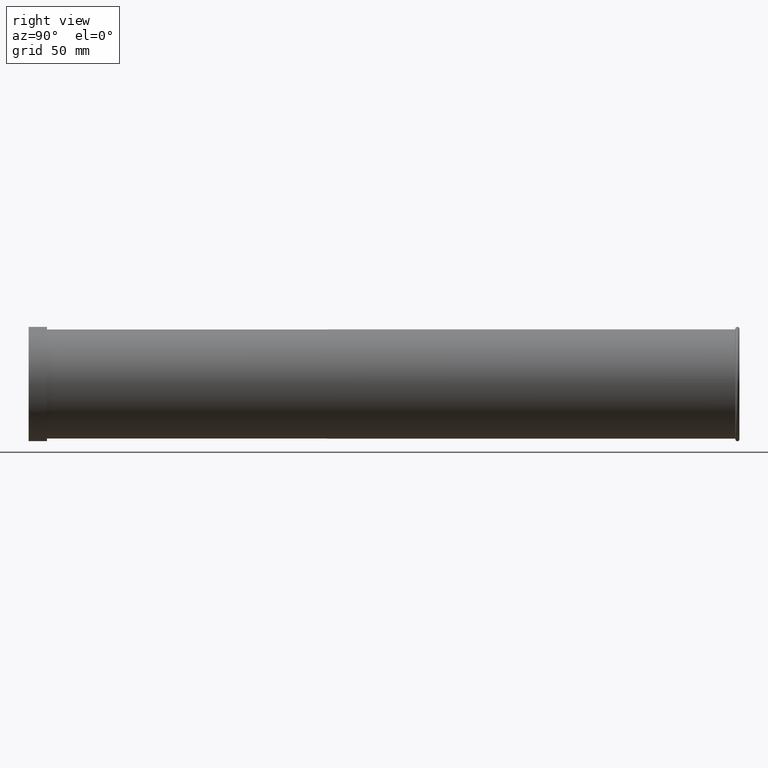
[diagram: clean part render]
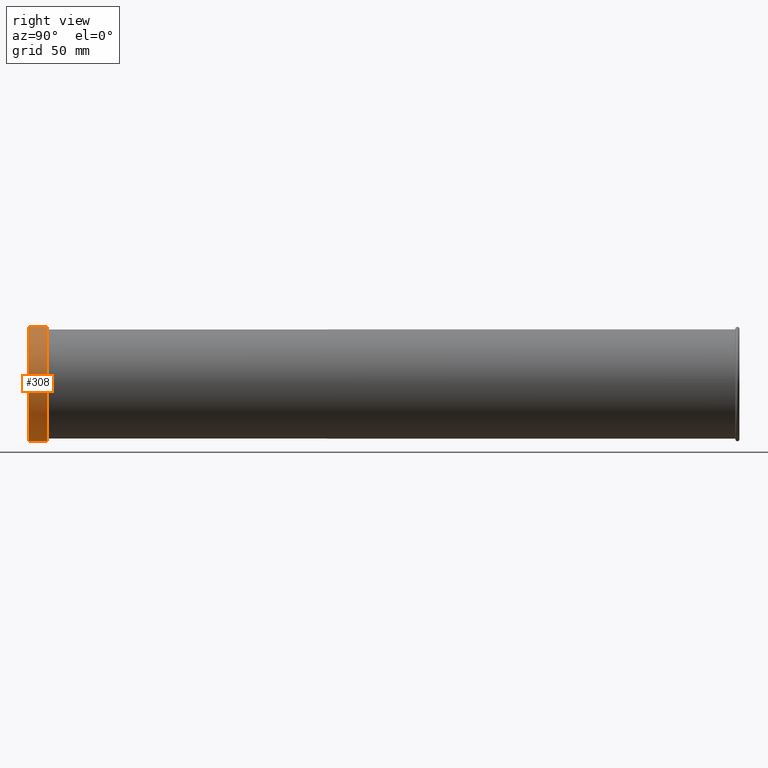
[diagram: same view with one face highlighted and labeled with its STEP entity id]
A machine part, right view. The second image highlights one B-rep face of the part: STEP entity #308.
In plain terms, the highlighted cylindrical surface (bore or boss wall) has radius 42.926 mm, axis along (0, -1, 0).
Its self-contained STEP definition (entity closure, byte-faithful):
#274=CARTESIAN_POINT('',(1.690000000000000,0.540000000000000,0.0));
#275=VERTEX_POINT('',#274);
#276=CARTESIAN_POINT('',(0.0,0.540000000000000,0.0));
#277=DIRECTION('',(0.0,-1.0,0.0));
#278=DIRECTION('',(1.0,0.0,0.0));
#279=AXIS2_PLACEMENT_3D('',#276,#277,#278);
#280=CIRCLE('',#279,1.690000000000000);
#281=EDGE_CURVE('',#275,#275,#280,.T.);
#289=CARTESIAN_POINT('',(0.0,0.270000000000000,0.0));
#290=DIRECTION('',(0.0,-1.0,0.0));
#291=DIRECTION('',(1.0,0.0,0.0));
#292=AXIS2_PLACEMENT_3D('',#289,#290,#291);
#293=CYLINDRICAL_SURFACE('',#292,1.690000000000000);
#294=CARTESIAN_POINT('',(1.690000000000000,0.0,0.0));
#295=VERTEX_POINT('',#294);
#296=CARTESIAN_POINT('',(0.0,0.0,0.0));
#297=DIRECTION('',(0.0,-1.0,0.0));
#298=DIRECTION('',(1.0,0.0,0.0));
#299=AXIS2_PLACEMENT_3D('',#296,#297,#298);
#300=CIRCLE('',#299,1.690000000000000);
#301=EDGE_CURVE('',#295,#295,#300,.T.);
#302=ORIENTED_EDGE('',*,*,#301,.F.);
#303=EDGE_LOOP('',(#302));
#304=FACE_OUTER_BOUND('',#303,.T.);
#305=ORIENTED_EDGE('',*,*,#281,.T.);
#306=EDGE_LOOP('',(#305));
#307=FACE_BOUND('',#306,.T.);
#308=ADVANCED_FACE('',(#304,#307),#293,.T.);